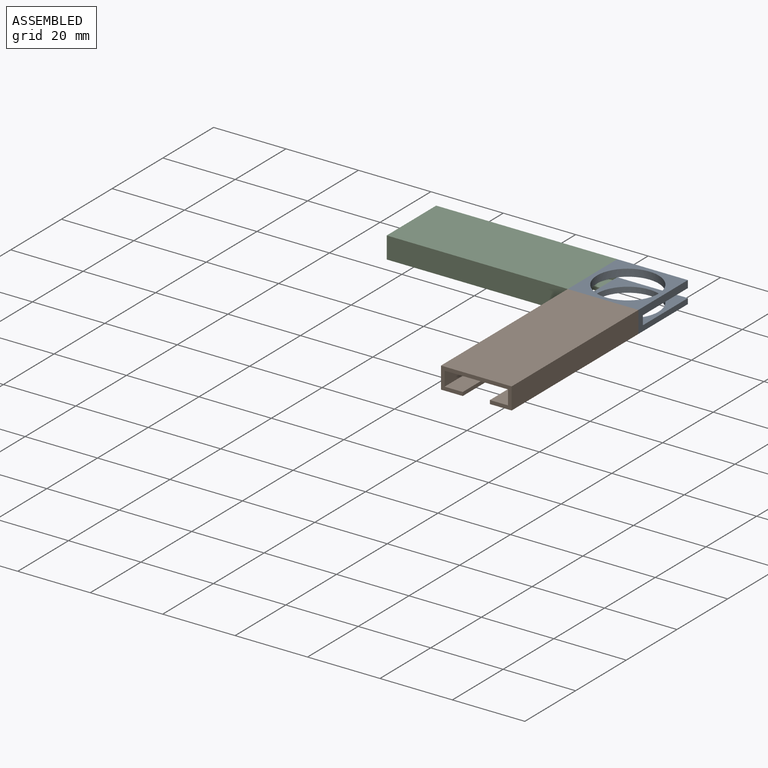
[diagram: assembled view]
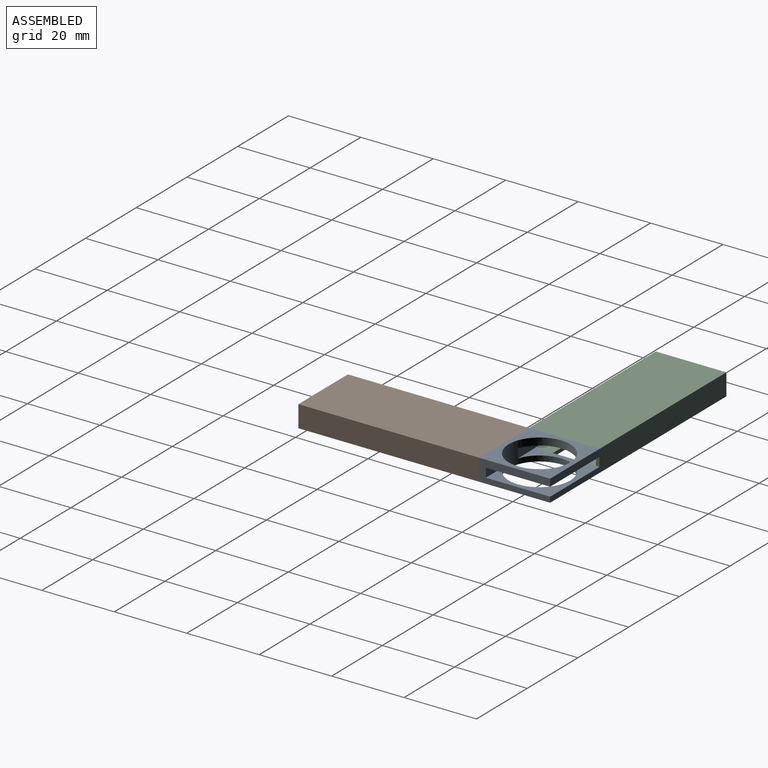
[diagram: assembled view, second angle]
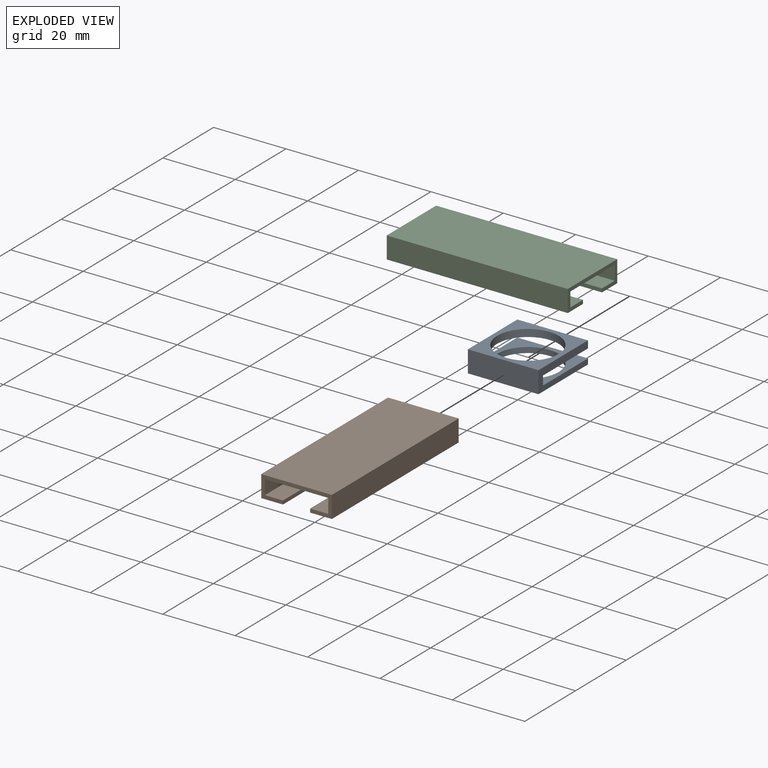
[diagram: exploded view]
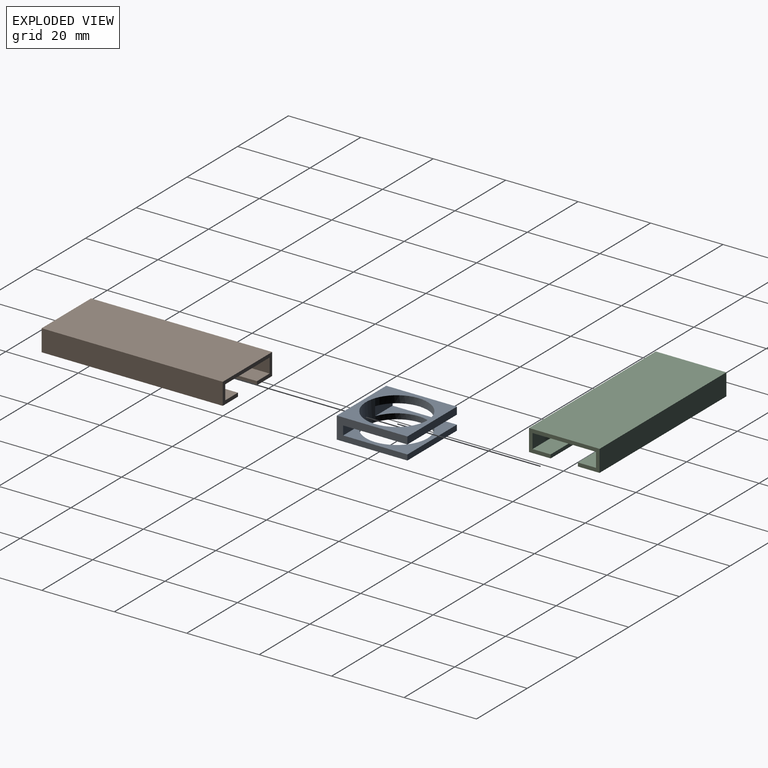
[diagram: exploded view, second angle]
ASSEMBLY  parts=3 mates=5
PART A: 12 faces, bbox 19.5x6x19.5 mm
  f0: plane 19.5x2mm, normal (-1,0,0), area 39mm2, adj f1,f5,f6,f10
  f1: plane 19.5x6mm, normal (0,0,1), area 72.6mm2, adj f0,f2,f3,f4,f5,f8,f9,f10
  f2: plane 19.5x1.5mm, normal (-1,0,0), area 29.3mm2, adj f1,f3,f6,f9
  f3: plane 19.5x19.5mm, normal (0,-1,0), area 153.3mm2, adj f1,f2,f4,f6,f7
  f4: plane 19.5x6mm, normal (1,0,0), area 117mm2, adj f1,f3,f5,f6
  f5: plane 19.5x19.5mm, normal (0,1,0), area 153.3mm2, adj f0,f1,f4,f6,f7
  f6: plane 19.5x6mm, normal (0,0,-1), area 72.6mm2, adj f0,f2,f3,f4,f5,f9,f10,f11
  f7: cylinder r=8.5mm len=17mm, axis (0,-1,0), area 201.6mm2, adj f3,f5,f8,f9,f10,f11
  f8: plane 6.88x2.5mm, normal (-1,0,0), area 17.2mm2, adj f1,f7,f9,f10
  f9: plane 19.5x17.75mm, normal (0,1,0), area 121.1mm2, adj f1,f2,f6,f7,f8,f11
  f10: plane 19.5x17.75mm, normal (0,-1,0), area 121.1mm2, adj f0,f1,f6,f7,f8,f11
  f11: plane 6.88x2.5mm, normal (-1,0,0), area 17.2mm2, adj f6,f7,f9,f10
PART B: 14 faces, bbox 19.5x50x6 mm
  f0: plane 50x6mm, normal (-1,0,0), area 300mm2, adj f1,f11,f12,f13
  f1: plane 50x19.5mm, normal (0,0,-1), area 975mm2, adj f0,f2,f12,f13
  f2: plane 50x6mm, normal (1,0,0), area 300mm2, adj f1,f3,f12,f13
  f3: plane 50x6mm, normal (0,0,1), area 300mm2, adj f2,f4,f12,f13
  f4: plane 50x1mm, normal (-1,0,0), area 50mm2, adj f3,f5,f12,f13
  f5: plane 50x5mm, normal (0,0,-1), area 250mm2, adj f4,f6,f12,f13
  f6: plane 50x4mm, normal (-1,0,0), area 200mm2, adj f5,f7,f12,f13
  f7: plane 50x17.5mm, normal (0,0,1), area 875mm2, adj f6,f8,f12,f13
  f8: plane 50x4mm, normal (1,0,0), area 200mm2, adj f7,f9,f12,f13
  f9: plane 50x5mm, normal (0,0,-1), area 250mm2, adj f8,f10,f12,f13
  f10: plane 50x1mm, normal (1,0,0), area 50mm2, adj f9,f11,f12,f13
  f11: plane 50x6mm, normal (0,0,1), area 300mm2, adj f0,f10,f12,f13
  f12: plane 19.5x6mm, normal (0,-1,0), area 39.5mm2, adj f0,f1,f2,f3,f4,f5,f6,f7
  f13: plane 19.5x6mm, normal (0,1,0), area 39.5mm2, adj f0,f1,f2,f3,f4,f5,f6,f7
PART C: same geometry as B
PLACE A rot(axis=(0.58,-0.58,-0.58),120deg) t=(147.54,72.67,77.63)mm
PLACE B rot(axis=(-1,0,0),180deg) t=(147.54,37.92,79.63)mm
PLACE C rot(axis=(-0.71,0.71,0),180deg) t=(112.79,72.67,79.63)mm
MATE planar C.f2 <-> A.f4  axis (0,-1,0) through (112.79,62.92,77.63)mm
MATE planar A.f7 <-> B.f3  axis (0,0,-1) through (147.54,72.67,74.63)mm
MATE planar A.f1 <-> C.f12  axis (-1,0,0) through (137.79,72.14,77.78)mm
MATE planar A.f7 <-> C.f3  axis (0,0,-1) through (147.54,72.67,74.63)mm
MATE planar A.f4 <-> B.f12  axis (0,-1,0) through (147.54,62.92,77.63)mm
